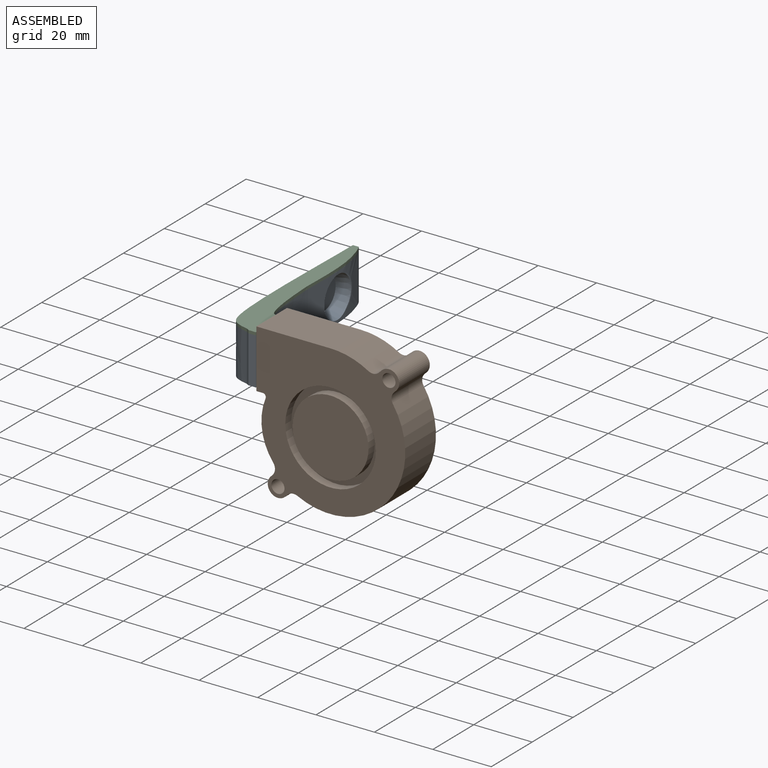
[diagram: assembled view]
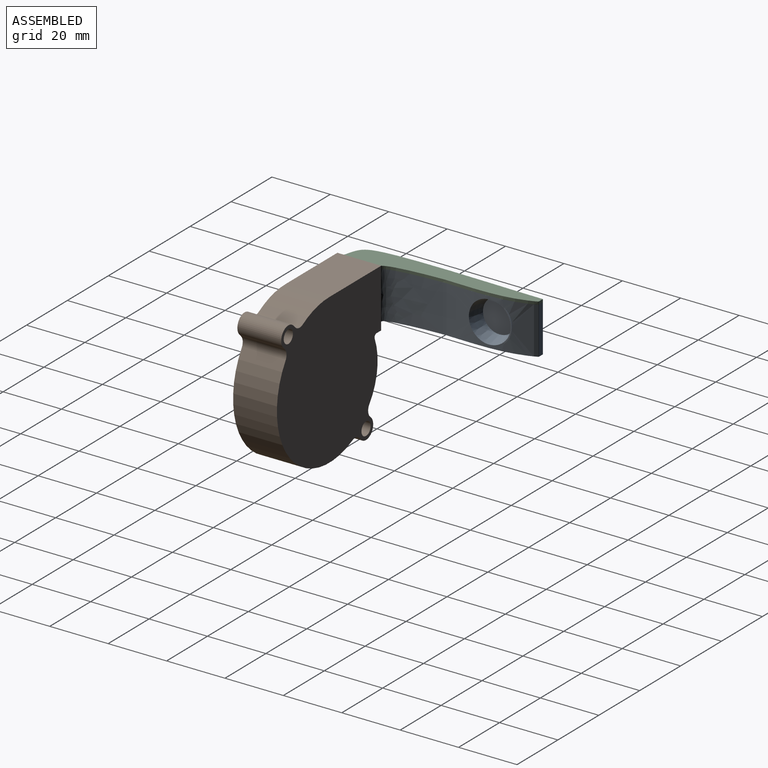
[diagram: assembled view, second angle]
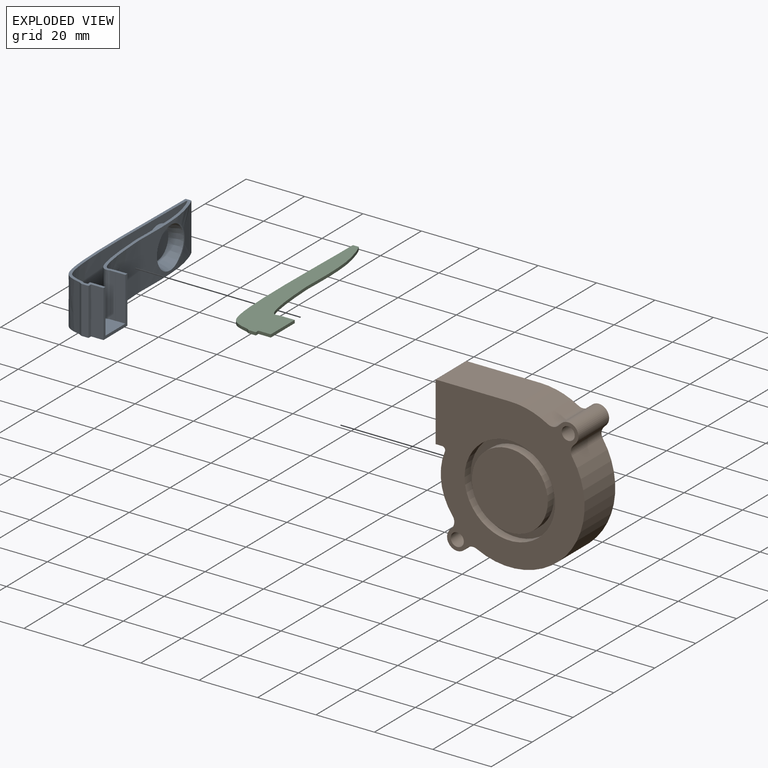
[diagram: exploded view]
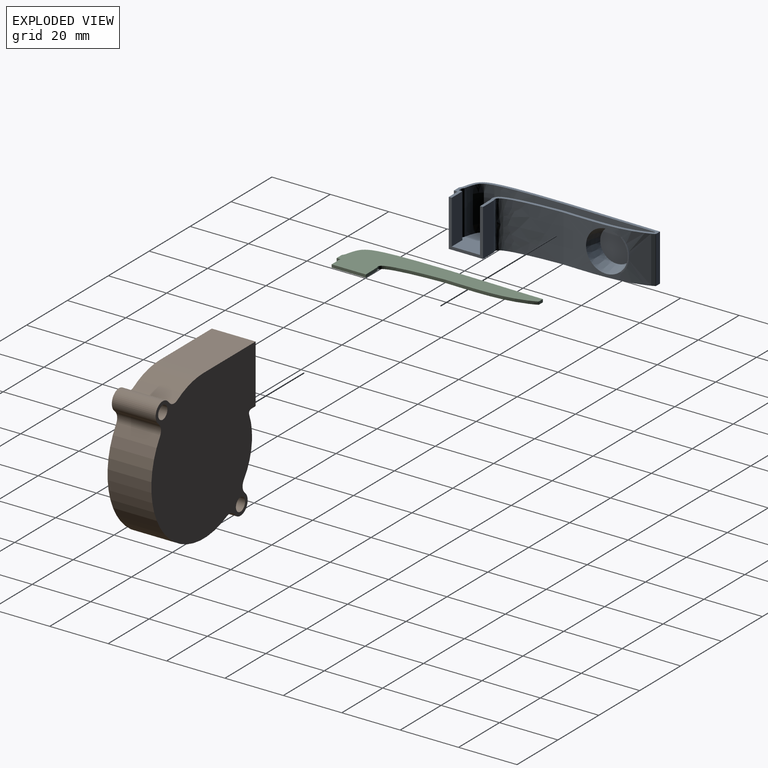
[diagram: exploded view, second angle]
ASSEMBLY  parts=3 mates=2
PART A: 31 faces, bbox 17.3x63.3x16.2 mm
  f0: extruded ~30.75x16.1mm, area 345.5mm2, adj f1,f2,f4,f5,f28,f29,f30
  f1: cone r=5.68mm half-angle=20deg, axis (1,0,0), area 0mm2, adj f0,f4
  f2: cone r=5.68mm half-angle=15deg, axis (1,0,0), area 189.6mm2, adj f0,f3,f4
  f3: plane 11.36x11.36mm, normal (1,0,0), area 101.4mm2, adj f2
  f4: plane 11.45x2.76mm, normal (1,0,0), area 5.3mm2, adj f0,f1,f2
  f5: extruded ~19.56x16.1mm, area 343.6mm2, adj f0,f6,f28,f30
  f6: plane 16.1x1.2mm, normal (0,1,0), area 19.3mm2, adj f5,f7,f28,f30
  f7: plane 16.1x0.06mm, normal (-1,0,0), area 1mm2, adj f6,f8,f28,f30
  f8: plane 16.1x4.25mm, normal (0,1,0), area 68.4mm2, adj f7,f9,f28,f30
  f9: plane 16.1x11.7mm, normal (1,0,0), area 41.9mm2, adj f8,f10,f21,f22,f27,f28,f30
  f10: plane 61.08x14.73mm, normal (0,0,1), area 315.2mm2, adj f9,f11,f12,f13,f14,f15,f16,f17
  f11: extruded ~20.46x15.1mm, area 346.8mm2, adj f10,f12,f20,f28
  f12: plane 15.1x2.03mm, normal (0,-1,0), area 30.6mm2, adj f10,f11,f13,f28
  f13: plane 15.1x0.06mm, normal (1,0,0), area 0.9mm2, adj f10,f12,f21,f28
  f14: plane 15.1x1.25mm, normal (-1,0,0), area 18.9mm2, adj f10,f15,f27,f28
  f15: plane 15.1x1.23mm, normal (0,1,0), area 18.5mm2, adj f10,f14,f16,f28
  f16: plane 15.1x0.85mm, normal (0.5,0.87,0), area 14.9mm2, adj f10,f15,f17,f28
  f17: extruded ~60.51x15.1mm, area 862.8mm2, adj f10,f16,f18,f19,f28
  f18: plane 15.1x0.4mm, normal (0,-1,0), area 6.1mm2, adj f10,f17,f20,f28
  f19: cone r=5.68mm half-angle=20deg, axis (1,0,0), area 140.7mm2, adj f10,f17,f20
  f20: extruded ~29.85x15.1mm, area 300.2mm2, adj f10,f11,f18,f19,f28
  f21: plane 15.1x3.25mm, normal (0,-1,0), area 49.1mm2, adj f9,f10,f13,f28
  f22: plane 16.1x4.25mm, normal (0,-1,0), area 68.4mm2, adj f9,f23,f28,f30
  f23: plane 16.1x1.25mm, normal (1,0,0), area 20.1mm2, adj f22,f24,f28,f30
  f24: plane 16.1x2.5mm, normal (0,-1,0), area 40.2mm2, adj f23,f25,f28,f30
  f25: plane 16.1x0.93mm, normal (-0.5,-0.87,0), area 17.4mm2, adj f24,f26,f28,f30
  f26: extruded ~62.46x16.1mm, area 1069.9mm2, adj f25,f28,f29,f30
  f27: plane 15.1x5.25mm, normal (0,1,0), area 79.3mm2, adj f9,f10,f14,f28
  f28: plane 63.24x17.19mm, normal (0,0,1), area 133.7mm2, adj f0,f5,f6,f7,f8,f9,f11,f12
  f29: plane 16.1x2.01mm, normal (0,1,0), area 32.3mm2, adj f0,f26,f28,f30
  f30: plane 63.24x17.19mm, normal (0,0,-1), area 449mm2, adj f0,f5,f6,f7,f8,f9,f22,f23
PART B: 30 faces, bbox 51x15x51.3 mm
  f0: plane 15x0.95mm, normal (-0.71,0,0.71), area 20mm2, adj f13,f14,f15,f26
  f1: cylinder r=25.65mm len=15mm, axis (0,-1,0), area 204.3mm2, adj f2,f14,f15,f26
  f2: plane 25.35x15mm, normal (0,0,1), area 380.2mm2, adj f1,f3,f14,f15
  f3: plane 20x15mm, normal (-1,0,0), area 85.3mm2, adj f2,f4,f14,f15,f20,f21,f22,f23
  f4: plane 15x2.24mm, normal (0,0,-1), area 33.6mm2, adj f3,f14,f15,f25
  f5: cylinder r=19.59mm len=19.23mm, axis (0,-1,0), area 304.5mm2, adj f14,f15,f25,f27
  f6: plane 15x0.58mm, normal (-0.71,0,0.71), area 12.2mm2, adj f7,f14,f15,f27
  f7: cylinder r=3.5mm len=15mm, axis (0,-1,0), area 164.9mm2, adj f6,f8,f14,f15
  f8: plane 15x0.79mm, normal (0.71,0,-0.71), area 16.8mm2, adj f7,f14,f15,f28
  f9: cylinder r=25.65mm len=39.75mm, axis (0,-1,0), area 1002.9mm2, adj f14,f15,f28,f29
  f10: plane 15x0.71mm, normal (0.71,0,-0.71), area 15.1mm2, adj f13,f14,f15,f29
  f11: cylinder r=2.25mm len=15mm, axis (0,-1,0), area 212.1mm2, adj f14,f15
  f12: cylinder r=2.25mm len=15mm, axis (0,-1,0), area 212.1mm2, adj f14,f15
  f13: cylinder r=3.5mm len=15mm, axis (0,-1,0), area 164.9mm2, adj f0,f10,f14,f15
  f14: plane 51.3x51mm, normal (0,1,0), area 2215.1mm2, adj f0,f1,f2,f3,f4,f5,f6,f7
  f15: plane 51.3x51mm, normal (0,-1,0), area 1460.3mm2, adj f0,f1,f2,f3,f4,f5,f6,f7
  f16: cylinder r=13mm len=26mm, axis (0,-1,0), area 245mm2, adj f18,f19
  f17: cylinder r=15.5mm len=31mm, axis (0,-1,0), area 292.2mm2, adj f15,f18
  f18: plane 31x31mm, normal (0,-1,0), area 223.8mm2, adj f16,f17
  f19: plane 26x26mm, normal (0,-1,0), area 530.9mm2, adj f16
  f20: plane 17.6x11.3mm, normal (0,-1,0), area 198.9mm2, adj f3,f21,f23,f24
  f21: plane 12.2x11.3mm, normal (0,0,1), area 137.9mm2, adj f3,f20,f22,f24
  f22: plane 17.6x11.3mm, normal (0,1,0), area 198.9mm2, adj f3,f21,f23,f24
  f23: plane 12.2x11.3mm, normal (0,0,-1), area 137.9mm2, adj f3,f20,f22,f24
  f24: plane 17.6x12.2mm, normal (-1,0,0), area 214.7mm2, adj f20,f21,f22,f23
  f25: cylinder r=1mm len=15mm, axis (0,-1,0), area 29.3mm2, adj f4,f5,f14,f15
  f26: cylinder r=3mm len=15mm, axis (0,-1,0), area 59.2mm2, adj f0,f1,f14,f15
  f27: cylinder r=3mm len=15mm, axis (0,-1,0), area 64.7mm2, adj f5,f6,f14,f15
  f28: cylinder r=3mm len=15mm, axis (0,-1,0), area 55.8mm2, adj f8,f9,f14,f15
  f29: cylinder r=3mm len=15mm, axis (0,-1,0), area 61.5mm2, adj f9,f10,f14,f15
PART C: 14 faces, bbox 17.2x63.2x1 mm
  f0: plane 1x0.06mm, normal (-1,0,0), area 0.1mm2, adj f1,f11,f12,f13
  f1: plane 1.2x1mm, normal (0,1,0), area 1.2mm2, adj f0,f2,f12,f13
  f2: extruded ~19.56x4.48mm, area 21.3mm2, adj f1,f3,f12,f13
  f3: extruded ~30.75x3.33mm, area 31.2mm2, adj f2,f4,f12,f13
  f4: plane 2.01x1mm, normal (0,1,0), area 2mm2, adj f3,f5,f12,f13
  f5: extruded ~62.46x7.96mm, area 66.5mm2, adj f4,f6,f12,f13
  f6: plane 1x0.93mm, normal (-0.5,-0.87,0), area 1.1mm2, adj f5,f7,f12,f13
  f7: plane 2.5x1mm, normal (0,-1,0), area 2.5mm2, adj f6,f8,f12,f13
  f8: plane 1.25x1mm, normal (1,0,0), area 1.3mm2, adj f7,f9,f12,f13
  f9: plane 4.25x1mm, normal (0,-1,0), area 4.3mm2, adj f8,f10,f12,f13
  f10: plane 11.7x1mm, normal (1,0,0), area 11.7mm2, adj f9,f11,f12,f13
  f11: plane 4.25x1mm, normal (0,1,0), area 4.3mm2, adj f0,f10,f12,f13
  f12: plane 63.24x17.19mm, normal (0,0,1), area 449mm2, adj f0,f1,f2,f3,f4,f5,f6,f7
  f13: plane 63.24x17.19mm, normal (0,0,-1), area 449mm2, adj f0,f1,f2,f3,f4,f5,f6,f7
PLACE A t=(9.02,-31.42,7.68)mm
PLACE B t=(8.77,-31.17,7.68)mm
PLACE C t=(0.22,-47.42,23.78)mm
MATE fastened A.f23 <-> B.f3  axis (1,0,0) through (-16.63,-30.17,25.28)mm
MATE fastened C.f13 <-> A.f28  axis (0,0,-1) through (-20.87,-14.53,32.58)mm
